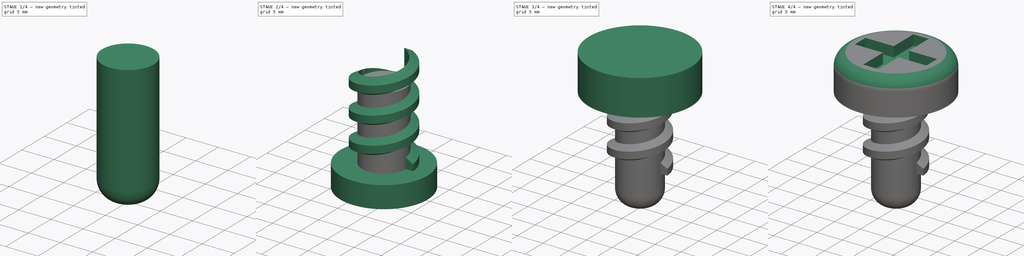
[diagram: build sequence overview — one tinted view per stage of 4, left to right]
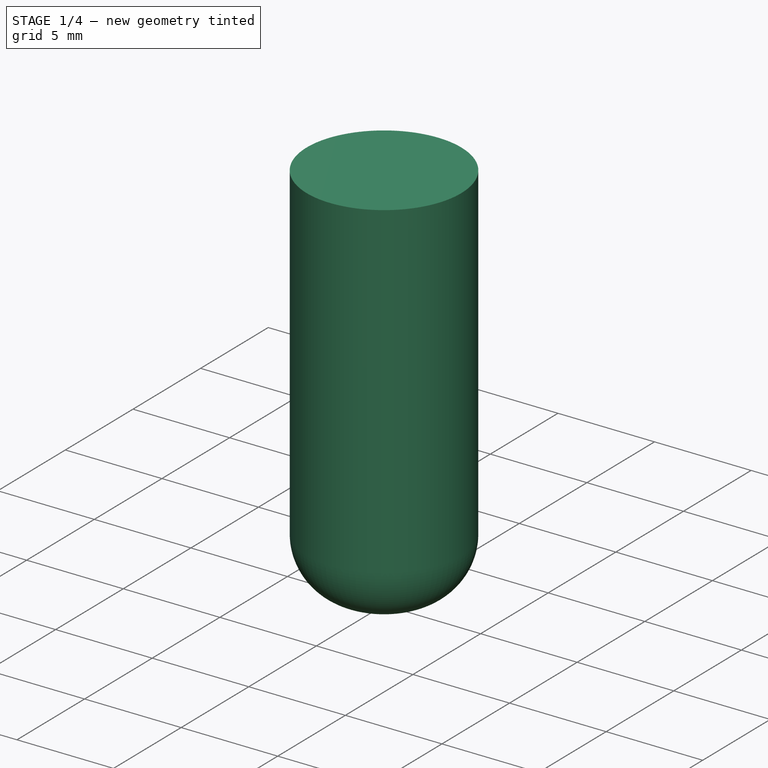
[diagram: stage 1 of 4 — iso view after this stage's code; geometry added in this stage tinted green]
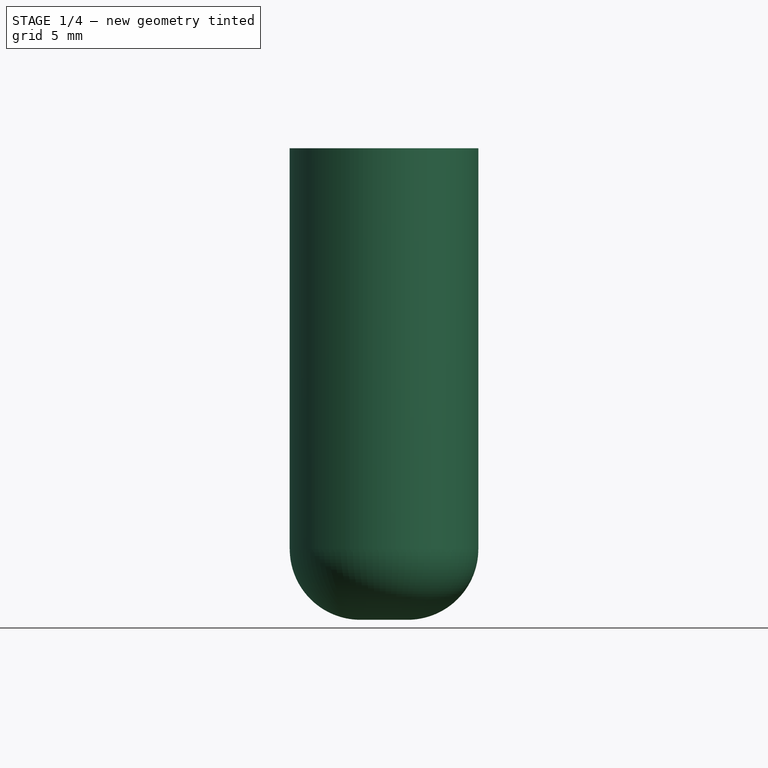
[diagram: stage 1 of 4 — front view after this stage's code; geometry added in this stage tinted green]
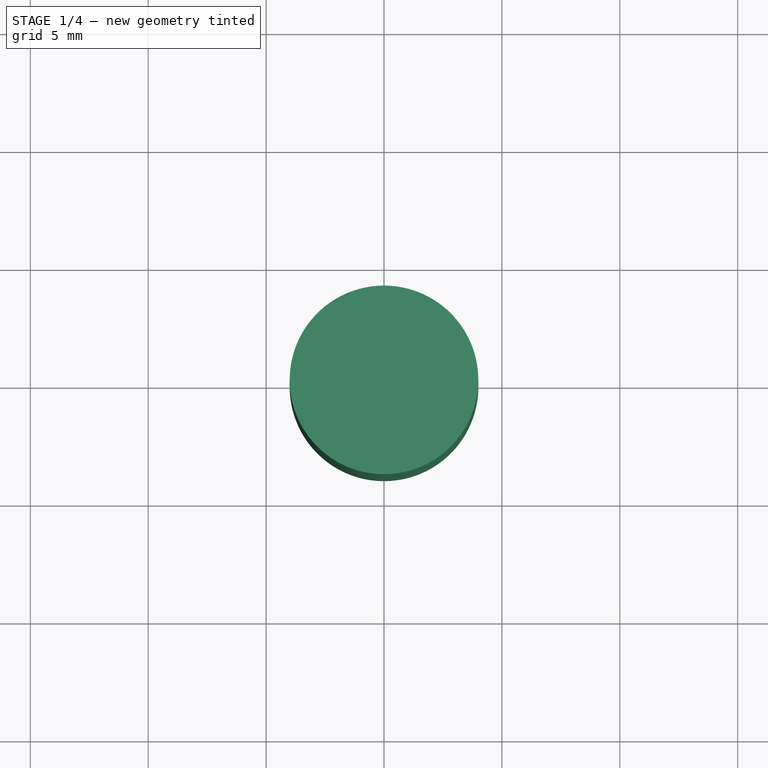
[diagram: stage 1 of 4 — top view after this stage's code; geometry added in this stage tinted green]
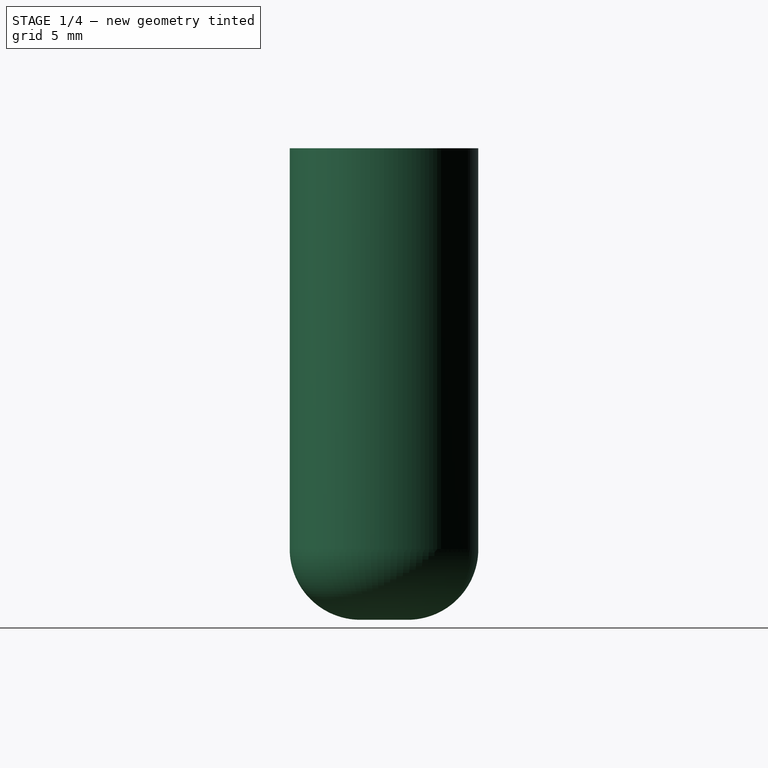
[diagram: stage 1 of 4 — right view after this stage's code; geometry added in this stage tinted green]
FCSTD DOCUMENT  (FreeCAD 0.17R13541 (Git))
Label: VissePortail
License: All rights reserved
LicenseURL: http://en.wikipedia.org/wiki/All_rights_reserved
objects: Sketcher::SketchObject×4, PartDesign::Body×3, Part::Helix×1, Part::Sweep×1, PartDesign::Pad×1, Part::Extrusion×1, PartDesign::Pocket×1, Part::Cylinder×1, Part::Cut×1, PartDesign::Fillet×1, PartDesign::FeatureBase×1, Part::Fillet×1
note: 19 computed .brp shape members not serialized (recipe doc carries the construction recipe); baked Part::Feature solids carry a one-line shape summary decoded from their .brp

FEATURE [Sketcher::SketchObject] Sketch003
  ExternalGeometry = -> [Sketch002]
  MapMode = 5
  Placement = pos=(0,0,7) rot=(0,0,1;0rad)
  sketch-geometry (14):
    g0: LineSegment StartX=-1.5 StartY=7 StartZ=0 EndX=1.5 EndY=7 EndZ=0
    g1: LineSegment StartX=1.5 StartY=7 StartZ=0 EndX=1.5 EndY=1.5 EndZ=0
    g2: LineSegment StartX=1.5 StartY=-7 StartZ=0 EndX=-1.5 EndY=-7 EndZ=0
    g3: LineSegment StartX=-1.5 StartY=-7 StartZ=0 EndX=-1.5 EndY=-1.5 EndZ=0
    g4: LineSegment StartX=-7 StartY=1.5 StartZ=0 EndX=-1.5 EndY=1.5 EndZ=0
    g5: LineSegment StartX=7 StartY=1.5 StartZ=0 EndX=7 EndY=-1.5 EndZ=0
    g6: LineSegment StartX=7 StartY=-1.5 StartZ=0 EndX=1.5 EndY=-1.5 EndZ=0
    g7: LineSegment StartX=-7 StartY=-1.5 StartZ=0 EndX=-7 EndY=1.5 EndZ=0
    g8: LineSegment StartX=-1.5 StartY=-1.5 StartZ=0 EndX=-7 EndY=-1.5 EndZ=0
    g9: LineSegment StartX=1.5 StartY=1.5 StartZ=0 EndX=7 EndY=1.5 EndZ=0
    g10: LineSegment StartX=-1.5 StartY=1.5 StartZ=0 EndX=-1.5 EndY=7 EndZ=0
    g11: LineSegment [constr] StartX=-11.3965 StartY=10 StartZ=0 EndX=10.1865 EndY=10 EndZ=0
    g12: LineSegment [constr] StartX=-10 StartY=6.00943 StartZ=0 EndX=-10 EndY=-6.15385 EndZ=0
    g13: LineSegment StartX=1.5 StartY=-1.5 StartZ=0 EndX=1.5 EndY=-7 EndZ=0
  constraints (36):
    c: Coincident(g0,g1)
    c: Coincident(g13,g2)
    c: Coincident(g2,g3)
    c: Coincident(g10,g0)
    c: Horizontal(g0)
    c: Horizontal(g2)
    c: Vertical(g1)
    c: Vertical(g3)
    c: Symmetric(g0,g0,g-2)
    c: Symmetric(g13,g0,g-1)
    c: DistanceX(g0,g0) = 3
    c: Coincident(g9,g5)
    c: Coincident(g5,g6)
    c: Coincident(g8,g7)
    c: Coincident(g7,g4)
    c: Horizontal(g4)
    c: Horizontal(g6)
    c: Vertical(g5)
    c: Vertical(g7)
    c: Symmetric(g9,g4,g-2)
    c: Symmetric(g4,g8,g-1)
    c: DistanceY(g5,g5) = 3
    c: Tangent(g6,g8)
    c: Tangent(g4,g9)
    c: Coincident(g3,g8)
    c: Coincident(g10,g4)
    c: Tangent(g3,g10)
    c: Horizontal(g11)
    c: Tangent(g11,g-3)
    c: DistanceY(g0,g11) = 3
    c: Vertical(g12)
    c: Tangent(g12,g-3)
    c: DistanceX(g4,g12) = -3
    c: Coincident(g1,g9)
    c: Coincident(g13,g6)
    c: Tangent(g1,g13)
FEATURE [Part::Extrusion] Extrude002  label="axe"
  Base = -> Sketch
  Dir = (0,0,1)
  DirMode = 2
  FaceMakerClass = Part::FaceMakerBullseye
  LengthFwd = 20
  LengthRev = 0
  Reversed = true
  Solid = true
  Symmetric = false
FEATURE [PartDesign::Body] Body001  label="corps"
  BaseFeature = -> Cut
  Group = -> [BaseFeature,Sketch,Sketch001]
  Origin = -> Origin001
  Tip = -> BaseFeature
FEATURE [Part::Fillet] Fillet001
  Base = -> Extrude002
  Edges = 1 edges r=3: [Edge3]
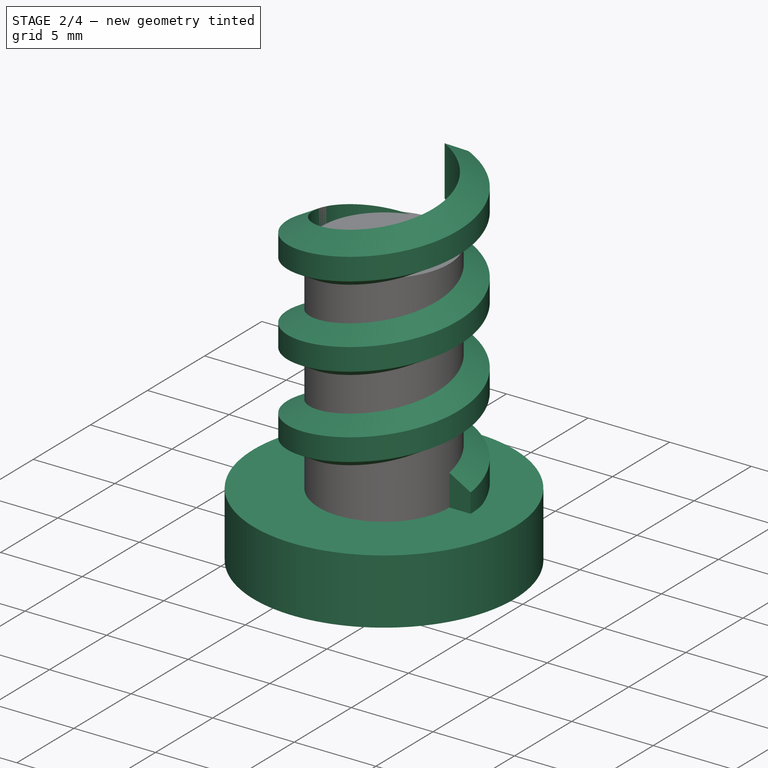
[diagram: stage 2 of 4 — iso view after this stage's code; geometry added in this stage tinted green]
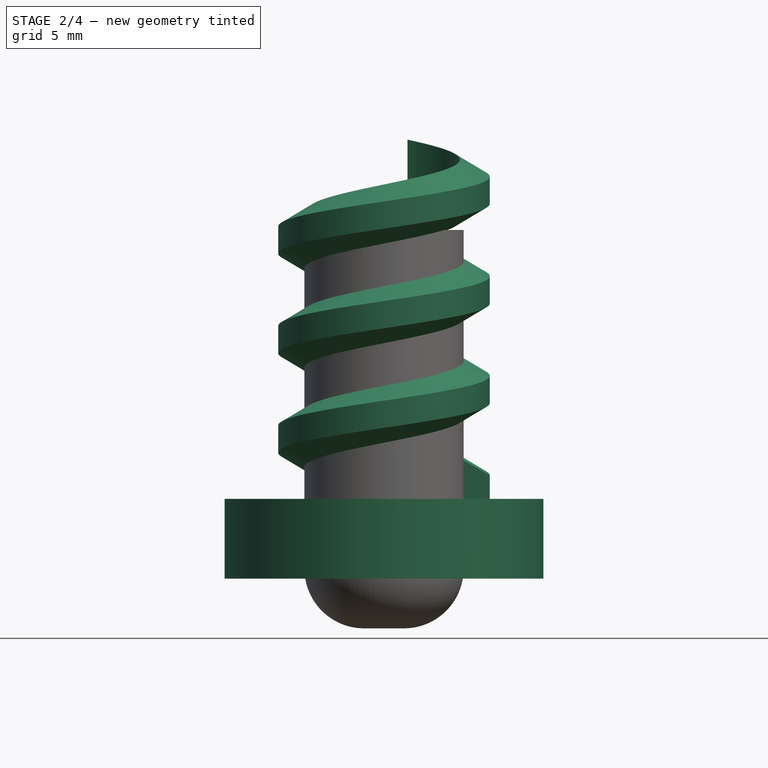
[diagram: stage 2 of 4 — front view after this stage's code; geometry added in this stage tinted green]
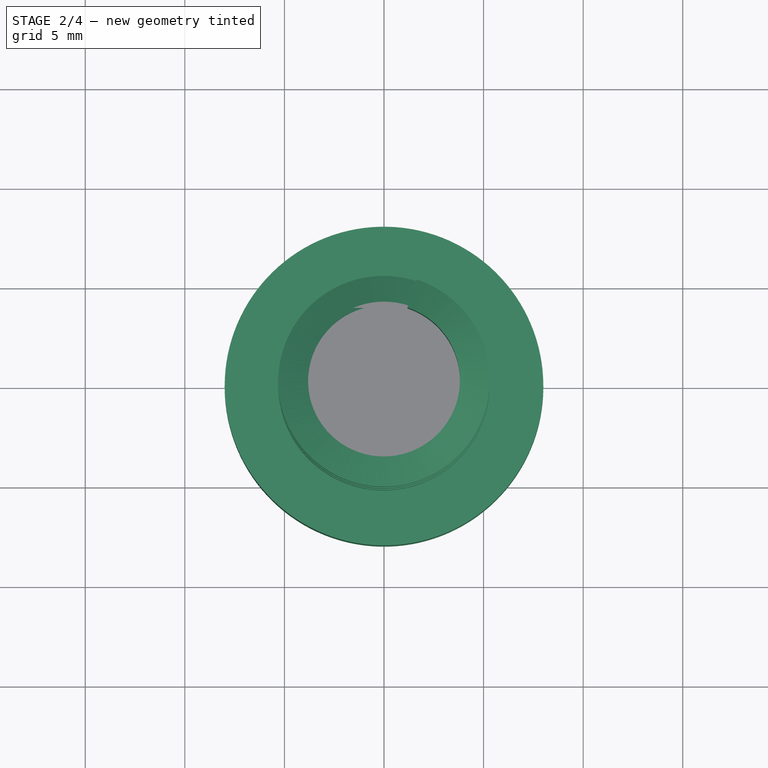
[diagram: stage 2 of 4 — top view after this stage's code; geometry added in this stage tinted green]
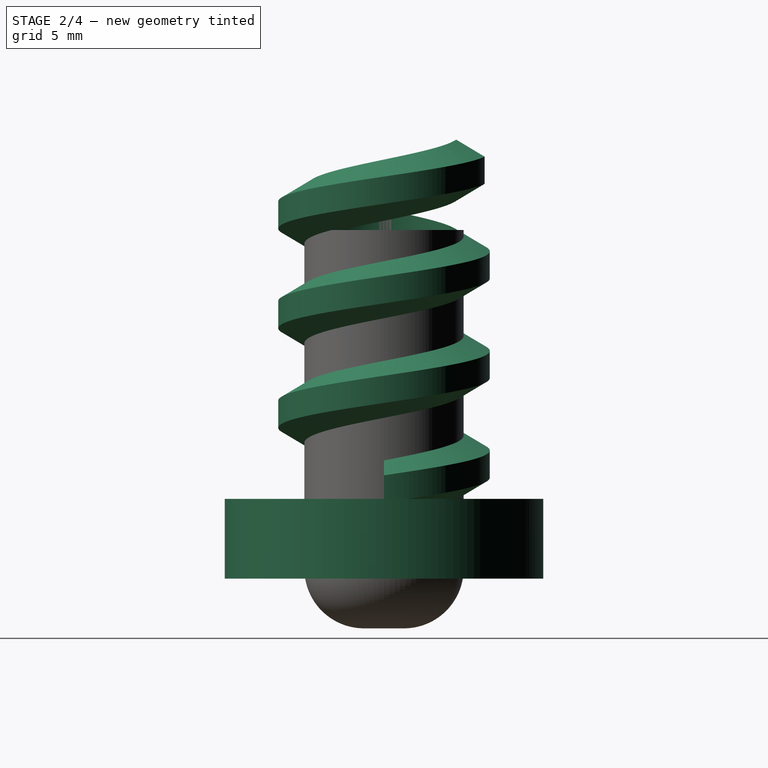
[diagram: stage 2 of 4 — right view after this stage's code; geometry added in this stage tinted green]
FEATURE [PartDesign::Body] Body  label="profile"
  Origin = -> Origin
FEATURE [Part::Helix] Helix  label="Hélice"
  Angle = 0
  AttacherType = Attacher::AttachEngine3D
  Height = 16
  LocalCoord = 0
  Pitch = 5
  Placement = pos=(0,0,-13) rot=(0,0,1;0rad)
  Radius = 4
  Style = 1
FEATURE [Sketcher::SketchObject] Sketch001  label="pas"
  AttachmentOffset = pos=(-8,11,0) rot=(0,0,1;0rad)
  MapMode = 5
  Placement = pos=(-8,-1e-12,11) rot=(1,0,0;1.5708rad)
  Support = -> [XZ_Plane001]
  sketch-geometry (5):
    g0: LineSegment StartX=13.3113 StartY=-23.3162 StartZ=0 EndX=13.3113 EndY=-24.6806 EndZ=0
    g1: LineSegment StartX=13.3113 StartY=-24.6806 StartZ=0 EndX=11.8113 EndY=-25.5355 EndZ=0
    g2: LineSegment StartX=11.8113 StartY=-22.4613 StartZ=0 EndX=13.3113 EndY=-23.3162 EndZ=0
    g3: LineSegment [constr] StartX=9.31043 StartY=-23.9984 StartZ=0 EndX=35.8077 EndY=-23.9984 EndZ=0
    g4: LineSegment StartX=11.8113 StartY=-22.4613 StartZ=0 EndX=11.8113 EndY=-25.5355 EndZ=0
  constraints (9):
    c: Vertical(g0)
    c: Coincident(g0,g1)
    c: Horizontal(g3)
    c: Symmetric(g0,g0,g3)
    c: Symmetric(g1,g2,g3)
    c: Coincident(g4,g2)
    c: Coincident(g4,g1)
    c: DistanceX(g1,g0) = 1.5
    c: Coincident(g2,g0)
FEATURE [Sketcher::SketchObject] Sketch  label="axe001"
  MapMode = 5
  Support = -> [XY_Plane001]
  sketch-geometry (1):
    g0: Circle CenterX=0 CenterY=0 CenterZ=0 NormalX=0 NormalY=0 NormalZ=1 AngleXU=0 Radius=4
  constraints (2):
    c: Coincident(g0,g-1)
    c: Radius(g0) = 4
FEATURE [Part::Sweep] Sweep  label="pas001"
  Frenet = true
  Sections = -> [Sketch001]
  Solid = true
  Spine = -> Helix
  Transition = 1
FEATURE [Part::Cylinder] Cylinder  label="fin pas"
  Angle = 360
  AttacherType = Attacher::AttachEngine3D
  Height = 4
  Placement = pos=(0,0,-17.5) rot=(0,0,1;0rad)
  Radius = 8
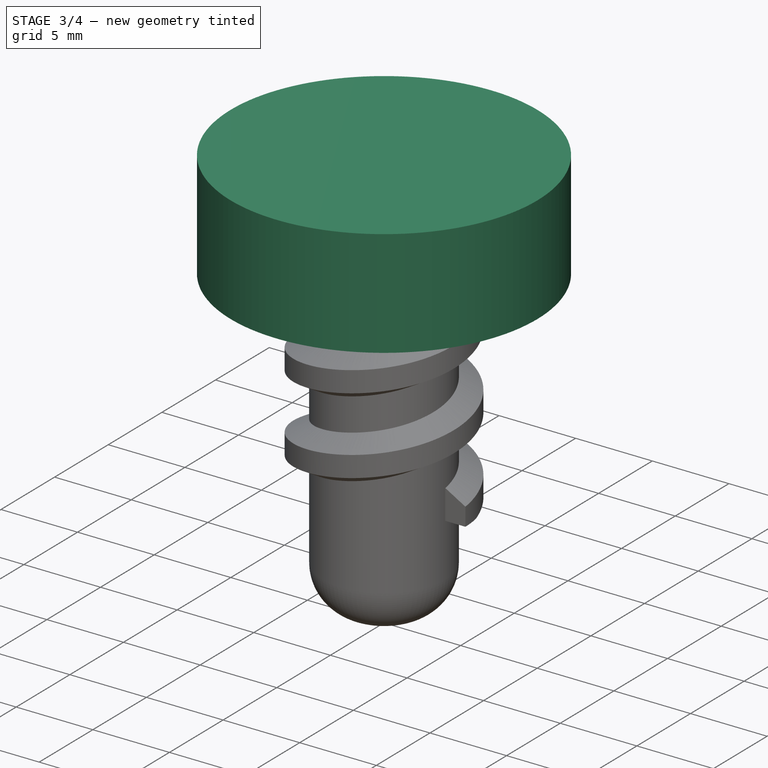
[diagram: stage 3 of 4 — iso view after this stage's code; geometry added in this stage tinted green]
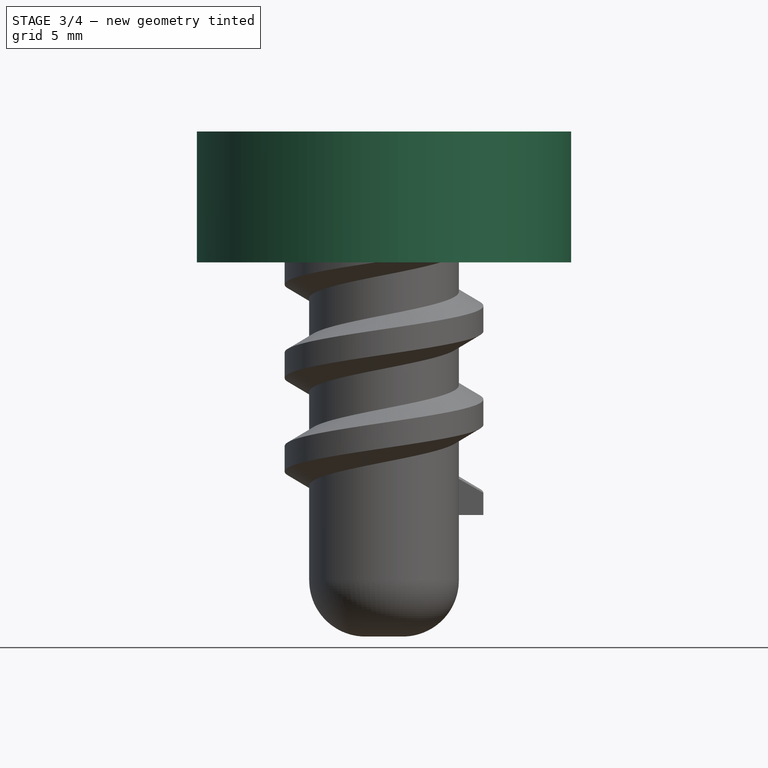
[diagram: stage 3 of 4 — front view after this stage's code; geometry added in this stage tinted green]
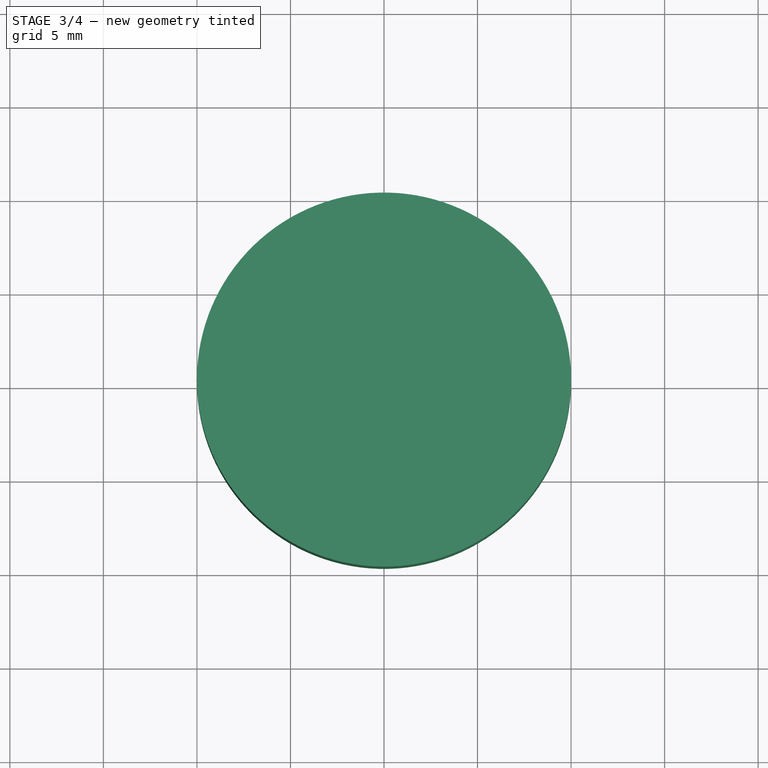
[diagram: stage 3 of 4 — top view after this stage's code; geometry added in this stage tinted green]
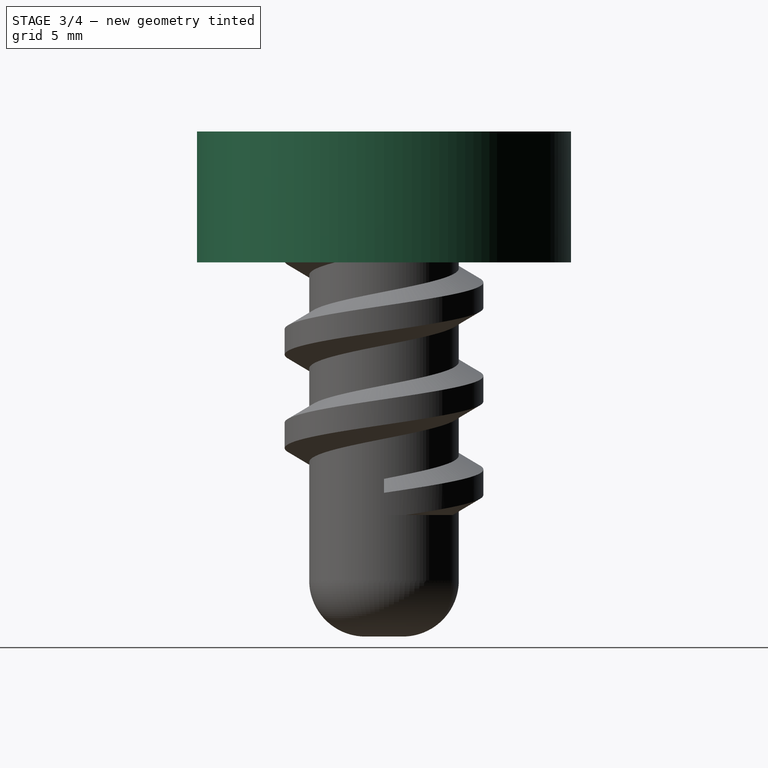
[diagram: stage 3 of 4 — right view after this stage's code; geometry added in this stage tinted green]
FEATURE [Sketcher::SketchObject] Sketch002
  MapMode = 5
  sketch-geometry (1):
    g0: Circle CenterX=0 CenterY=0 CenterZ=0 NormalX=0 NormalY=0 NormalZ=1 AngleXU=0 Radius=10
  constraints (2):
    c: Coincident(g0,g-1)
    c: Radius(g0) = 10
FEATURE [PartDesign::Pad] Pad001  label="tete001"
  Length = 7
  Length2 = 100
  Profile = -> Sketch002
  Type = 0
FEATURE [Part::Cut] Cut
  Base = -> Sweep
  Tool = -> Cylinder
FEATURE [PartDesign::Body] Body002  label="tete"
  Group = -> [Sketch002,Pad001,Sketch003,Pocket,Fillet]
  Origin = -> Origin002
  Tip = -> Fillet
FEATURE [PartDesign::FeatureBase] BaseFeature
  BaseFeature = -> Cut
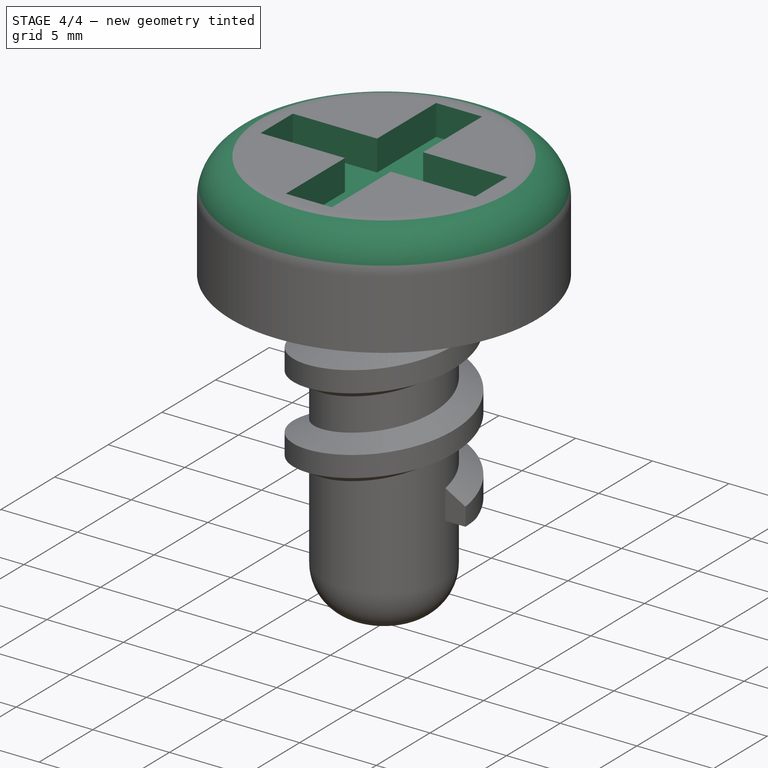
[diagram: stage 4 of 4 — iso view after this stage's code; geometry added in this stage tinted green]
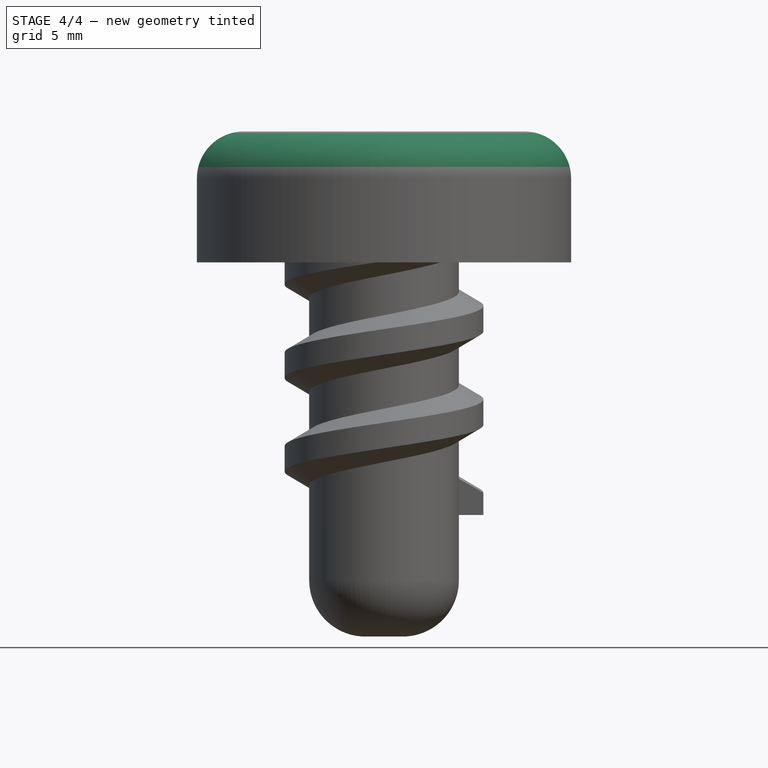
[diagram: stage 4 of 4 — front view after this stage's code; geometry added in this stage tinted green]
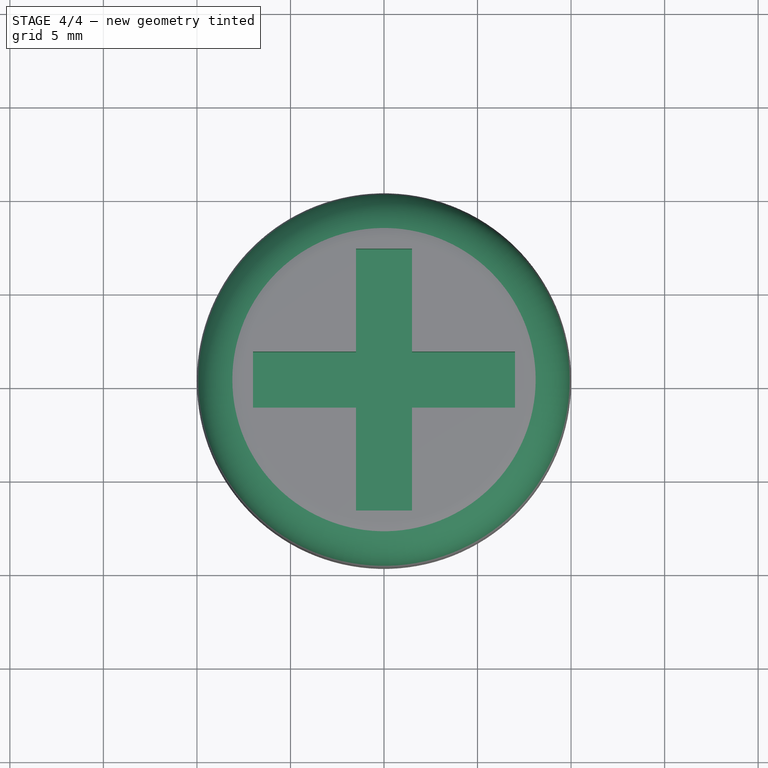
[diagram: stage 4 of 4 — top view after this stage's code; geometry added in this stage tinted green]
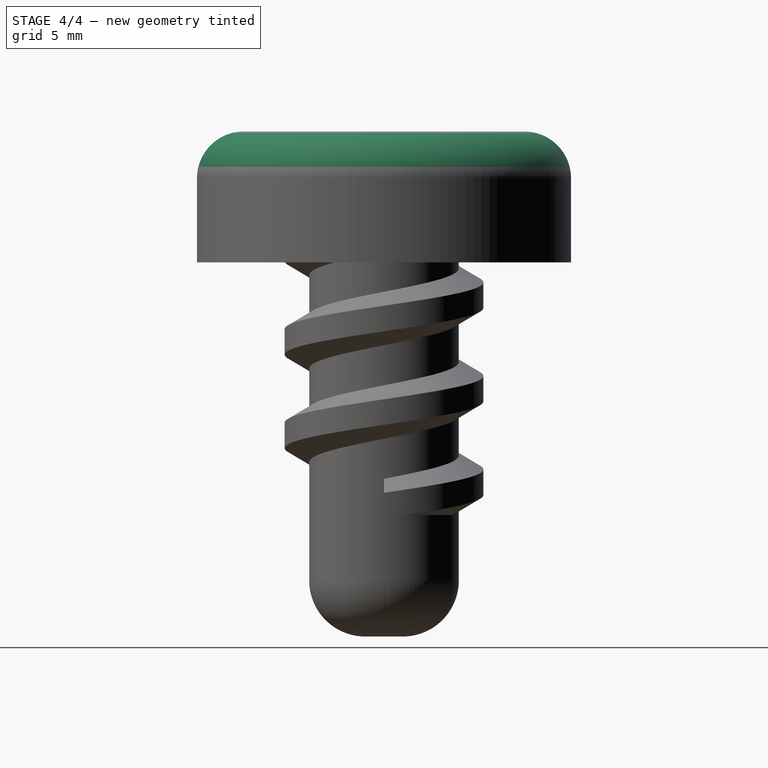
[diagram: stage 4 of 4 — right view after this stage's code; geometry added in this stage tinted green]
FEATURE [PartDesign::Pocket] Pocket  label="fente"
  BaseFeature = -> Pad001
  Length = 2
  Length2 = 100
  Profile = -> Sketch003
  Type = 0
FEATURE [PartDesign::Fillet] Fillet
  Base = -> Pocket [Edge3]
  BaseFeature = -> Pocket
  Radius = 2.5
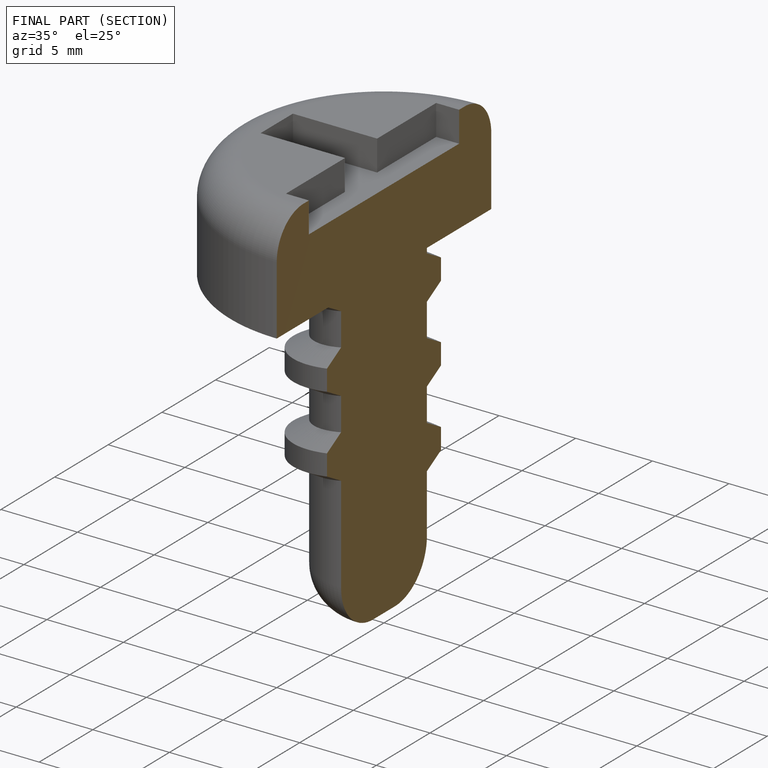
[diagram: finished part — half-section view (interior)]
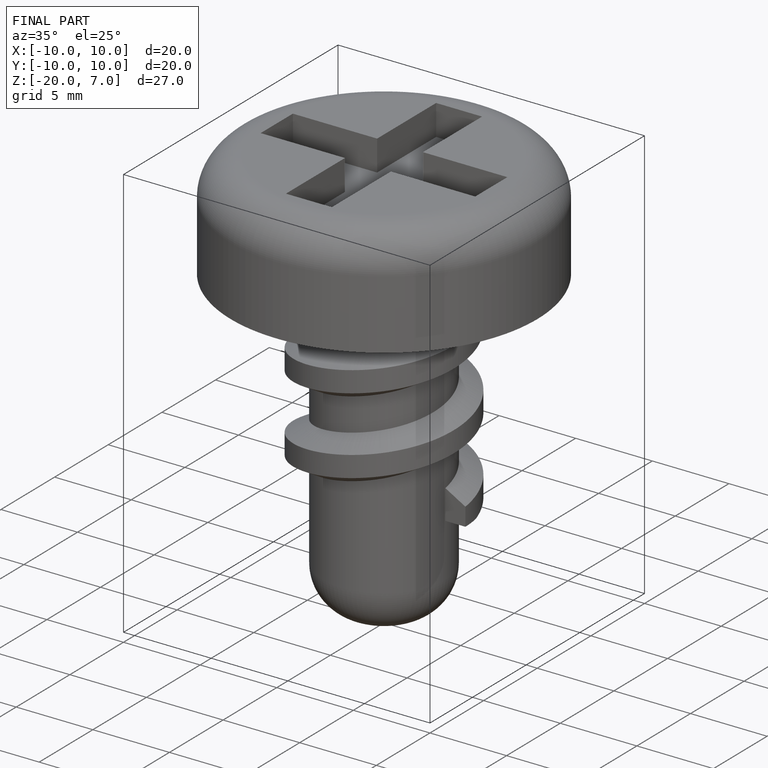
[diagram: finished part — iso view with bounding-box wireframe]
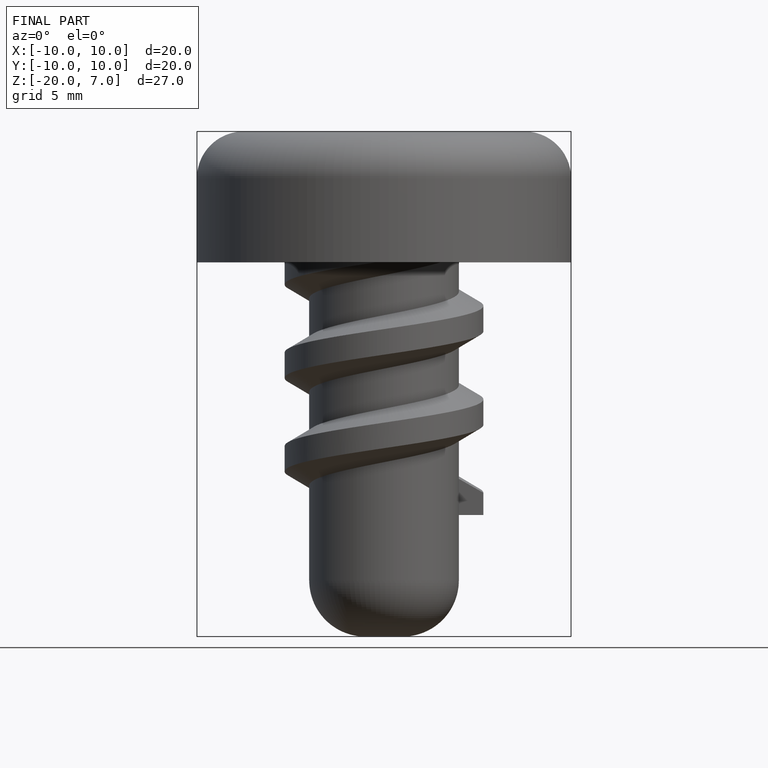
[diagram: finished part — front view with bounding-box wireframe]
